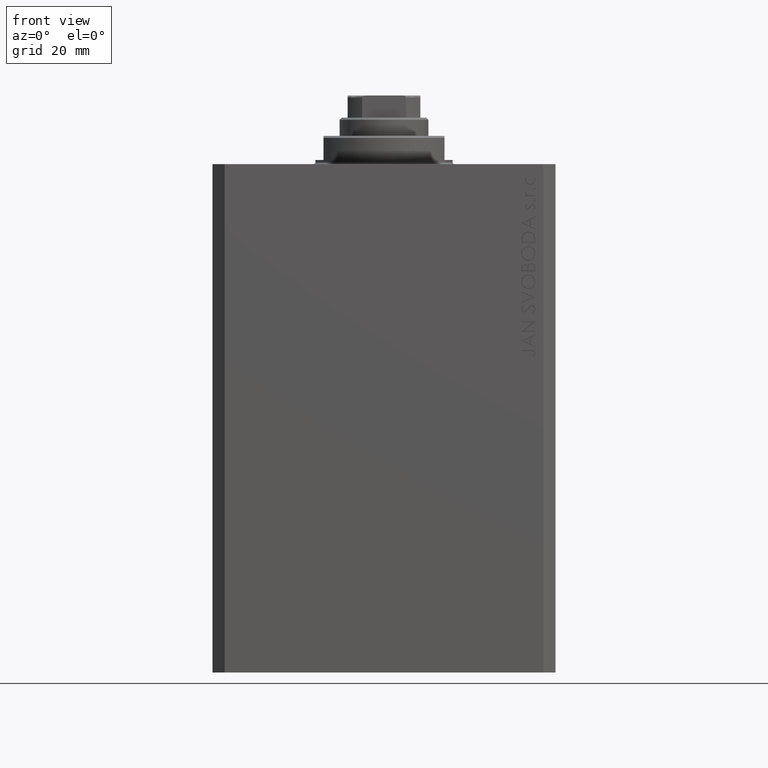
[diagram: clean part render]
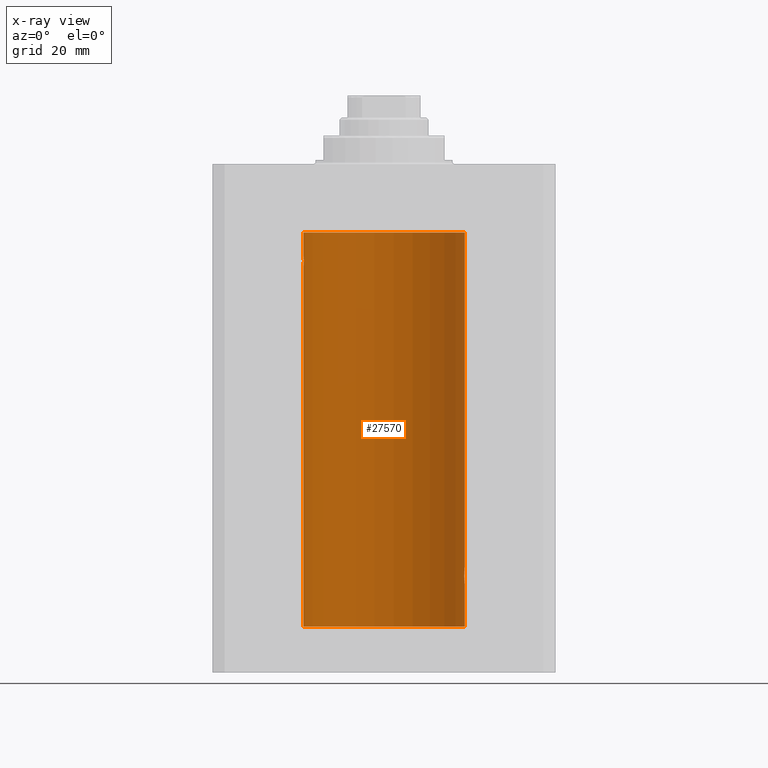
[diagram: x-ray — body ghosted, one internal face saturated and labeled with its STEP entity id]
A machine part, front view, then the same camera in x-ray: the body is ghosted and one INTERNAL B-rep face — a face not visible from any outside direction — is saturated and labeled: STEP entity #27570.
In plain terms, the highlighted cylindrical surface (partial cylindrical patch) has radius 20 mm, axis along (0, 0, 1).
Its self-contained STEP definition (entity closure, byte-faithful):
#507 = CARTESIAN_POINT ( 'NONE',  ( -19.96304379627741454, 1.220099331833899736, -25.59007067689674386 ) ) ;
#743 = CARTESIAN_POINT ( 'NONE',  ( -19.90610216711450420, 1.935912154109700190, -24.51899474186111050 ) ) ;
#912 = CARTESIAN_POINT ( 'NONE',  ( -20.00000000000000000, 2.449293598294706513E-15, -114.5999999999999943 ) ) ;
#990 = EDGE_CURVE ( 'NONE', #46525, #39022, #39038, .T. ) ;
#1505 = CARTESIAN_POINT ( 'NONE',  ( 19.98995738555794688, 0.6452086089795042723, -103.8976034536016044 ) ) ;
#1602 = AXIS2_PLACEMENT_3D ( 'NONE', #34796, #27419, #34562 ) ;
#1742 = CARTESIAN_POINT ( 'NONE',  ( 19.93682487288204541, 1.599118048130817149, -103.2291703518122148 ) ) ;
#2336 = EDGE_CURVE ( 'NONE', #39022, #36044, #27652, .T. ) ;
#2454 = CARTESIAN_POINT ( 'NONE',  ( -19.99999999999999645, 0.1322335637814733289, -21.99999999999999645 ) ) ;
#3391 = CARTESIAN_POINT ( 'NONE',  ( -19.93684595445884611, 1.598854313793185655, -22.77049887769366521 ) ) ;
#3393 = ORIENTED_EDGE ( 'NONE', *, *, #2336, .T. ) ;
#3869 = CARTESIAN_POINT ( 'NONE',  ( -19.94330239452387232, 1.507796451871729504, -25.32060165083834136 ) ) ;
#4093 = CARTESIAN_POINT ( 'NONE',  ( -19.98070694681040038, 0.8865903856744316025, -25.79753901127162763 ) ) ;
#4163 = CARTESIAN_POINT ( 'NONE',  ( 20.00000000000000000, 0.000000000000000000, -114.5999999999999943 ) ) ;
#4365 = ORIENTED_EDGE ( 'NONE', *, *, #30948, .T. ) ;
#4468 = CARTESIAN_POINT ( 'NONE',  ( 19.98998987637478209, 0.6441982143731844745, -100.1020565463988561 ) ) ;
#4645 = AXIS2_PLACEMENT_3D ( 'NONE', #6623, #38618, #21201 ) ;
#4704 = CARTESIAN_POINT ( 'NONE',  ( 20.00000000000000000, -1.553109350199128042E-23, -100.0000000000000000 ) ) ;
#5323 = DIRECTION ( 'NONE',  ( -0.000000000000000000, -0.000000000000000000, 1.000000000000000000 ) ) ;
#5339 = CARTESIAN_POINT ( 'NONE',  ( 19.96307037068151757, 1.219701915132744841, -103.5904134935036467 ) ) ;
#6623 = CARTESIAN_POINT ( 'NONE',  ( 0.000000000000000000, 0.000000000000000000, -17.00000000000000000 ) ) ;
#7718 = CARTESIAN_POINT ( 'NONE',  ( -19.99867931558985745, 0.2631998640366461362, -25.98691292011447374 ) ) ;
#7947 = CARTESIAN_POINT ( 'NONE',  ( -19.92471474456649716, 1.735228749583835439, -25.00297226784954674 ) ) ;
#7993 = CARTESIAN_POINT ( 'NONE',  ( 19.89974874213236333, 2.000000000000336620, -102.0000000000000142 ) ) ;
#8207 = VERTEX_POINT ( 'NONE', #37643 ) ;
#8593 = LINE ( 'NONE', #912, #46924 ) ;
#8946 = CARTESIAN_POINT ( 'NONE',  ( 19.97516523393783316, 1.002309963754524524, -103.7356447155610937 ) ) ;
#9187 = VECTOR ( 'NONE', #10023, 1000.000000000000000 ) ;
#10023 = DIRECTION ( 'NONE',  ( -0.000000000000000000, -0.000000000000000000, 1.000000000000000000 ) ) ;
#11188 = CARTESIAN_POINT ( 'NONE',  ( 19.90980722176544049, 1.897923463361389285, -101.3557453536680839 ) ) ;
#11293 = CARTESIAN_POINT ( 'NONE',  ( -19.90978941500366872, 1.898109641280506521, -24.64371130639850804 ) ) ;
#11407 = CARTESIAN_POINT ( 'NONE',  ( 19.98071536551674754, 0.8863972468204365240, -100.2023680539948458 ) ) ;
#11519 = CARTESIAN_POINT ( 'NONE',  ( -19.91909332229799290, 1.797847595792767317, -24.88596189455837759 ) ) ;
#11611 = DIRECTION ( 'NONE',  ( 0.000000000000000000, 0.000000000000000000, 1.000000000000000000 ) ) ;
#11880 = CARTESIAN_POINT ( 'NONE',  ( 19.99867993937906618, 0.2631387813862826053, -100.0130809500309539 ) ) ;
#12116 = CARTESIAN_POINT ( 'NONE',  ( 19.95655800881796083, 1.320814917468111194, -100.4923930935969594 ) ) ;
#12764 = CARTESIAN_POINT ( 'NONE',  ( 19.90520750556430229, 1.947496194184494378, -102.5245541699345324 ) ) ;
#12860 = FACE_OUTER_BOUND ( 'NONE', #16015, .T. ) ;
#12977 = CARTESIAN_POINT ( 'NONE',  ( 19.89974874213236333, 2.000000000000336620, -102.0000000000000142 ) ) ;
#14406 = CARTESIAN_POINT ( 'NONE',  ( -19.99365919015135518, 0.5196544277756711683, -25.93573148867292133 ) ) ;
#14640 = CARTESIAN_POINT ( 'NONE',  ( -19.93679350243183990, 1.590453176650918676, -25.21960275349743696 ) ) ;
#14739 = CARTESIAN_POINT ( 'NONE',  ( 0.000000000000000000, 0.000000000000000000, -114.5999999999999943 ) ) ;
#14854 = ORIENTED_EDGE ( 'NONE', *, *, #990, .T. ) ;
#14999 = CARTESIAN_POINT ( 'NONE',  ( 19.99366205580918887, 0.5195372307044503479, -100.0642390655580698 ) ) ;
#15108 = CARTESIAN_POINT ( 'NONE',  ( -19.99999999999999645, 0.1305706983324449733, -25.99999999999998934 ) ) ;
#15370 = ORIENTED_EDGE ( 'NONE', *, *, #20023, .F. ) ;
#15567 = EDGE_CURVE ( 'NONE', #20977, #39243, #24596, .T. ) ;
#16015 = EDGE_LOOP ( 'NONE', ( #15370, #37825, #40858, #14854, #3393, #4365, #36454, #38226, #40625 ) ) ;
#16343 = CARTESIAN_POINT ( 'NONE',  ( 19.92371056170336274, 1.748080295468898537, -103.0060386593725070 ) ) ;
#16640 = CARTESIAN_POINT ( 'NONE',  ( -20.00000000000000000, 2.449293598294706513E-15, -17.00000000000000000 ) ) ;
#17053 = CARTESIAN_POINT ( 'NONE',  ( -19.99868965376115071, 0.2622407139811102628, -22.01298505384673732 ) ) ;
#17438 = CARTESIAN_POINT ( 'NONE',  ( -20.00000000000000000, 2.449293582768784389E-15, -25.99999999999999645 ) ) ;
#18796 = DIRECTION ( 'NONE',  ( 1.000000000000000000, 0.000000000000000000, 0.000000000000000000 ) ) ;
#19922 = CARTESIAN_POINT ( 'NONE',  ( 19.95643710845398999, 1.322557776536547047, -103.5059384114668717 ) ) ;
#20021 = CYLINDRICAL_SURFACE ( 'NONE', #1602, 20.00000000000000000 ) ;
#20023 = EDGE_CURVE ( 'NONE', #8207, #39243, #36254, .T. ) ;
#20381 = LINE ( 'NONE', #38022, #32843 ) ;
#20977 = VERTEX_POINT ( 'NONE', #37194 ) ;
#21201 = DIRECTION ( 'NONE',  ( 1.000000000000000000, 0.000000000000000000, 0.000000000000000000 ) ) ;
#21435 = CIRCLE ( 'NONE', #4645, 20.00000000000000000 ) ;
#21715 = CARTESIAN_POINT ( 'NONE',  ( -20.00000000000000000, 2.449293598294706513E-15, -114.5999999999999943 ) ) ;
#22041 = CARTESIAN_POINT ( 'NONE',  ( -19.95654117037011588, 1.321069663197671273, -25.50738641543989615 ) ) ;
#22163 = CARTESIAN_POINT ( 'NONE',  ( 19.89974874213236689, 2.000000000000336620, -101.8694898374175750 ) ) ;
#22388 = CARTESIAN_POINT ( 'NONE',  ( 19.94332236886613074, 1.507531922383789524, -100.6790994990407455 ) ) ;
#22501 = CARTESIAN_POINT ( 'NONE',  ( -20.00000000000000000, 2.449293582768784389E-15, -25.99999999999999645 ) ) ;
#23098 = CARTESIAN_POINT ( 'NONE',  ( 19.96305842179988588, 1.219858681717333138, -100.4097471253956542 ) ) ;
#24409 = DIRECTION ( 'NONE',  ( -0.000000000000000000, -0.000000000000000000, 1.000000000000000000 ) ) ;
#24440 = CARTESIAN_POINT ( 'NONE',  ( -19.99370013622814568, 0.5179893069484621249, -22.06384771616670903 ) ) ;
#24596 = B_SPLINE_CURVE_WITH_KNOTS ( 'NONE', 3,
 ( #35168, #2454, #17053, #24440, #38977, #28722, #25145, #39686, #36105, #3391, #31374, #45897, #29656, #40158, #39918, #743, #11293, #11519, #7947, #14640, #3869, #22041, #507, #44419, #4093, #33006, #14406, #7718, #15108, #22501 ),
 .UNSPECIFIED., .F., .F.,
 ( 4, 2, 2, 2, 2, 2, 2, 2, 2, 2, 2, 2, 2, 2, 4 ),
 ( 1.233811249882840126E-19, 0.0003910512220831129202, 0.0007821024441662257319, 0.001173153666249338381, 0.001564204888332450813, 0.002346307332498675461, 0.003128409776664900326, 0.003519460998748018179, 0.003910512220831135165, 0.004301563442914253452, 0.004692614664997370871, 0.005083665887080488291, 0.005474717109163606578, 0.005865768331246723997, 0.006256819553329842284 ),
 .UNSPECIFIED. ) ;
#25145 = CARTESIAN_POINT ( 'NONE',  ( -19.97517568592526160, 1.002099838626314909, -22.26423634872104884 ) ) ;
#25738 = CARTESIAN_POINT ( 'NONE',  ( 19.91911433329477177, 1.797615436563606561, -101.1135710607578062 ) ) ;
#25960 = CARTESIAN_POINT ( 'NONE',  ( 19.97511131722831479, 1.003336743019912936, -100.2649856517438849 ) ) ;
#25970 = EDGE_CURVE ( 'NONE', #37736, #46525, #20381, .T. ) ;
#26578 = EDGE_CURVE ( 'NONE', #34932, #44253, #21435, .T. ) ;
#27078 = CARTESIAN_POINT ( 'NONE',  ( 19.98066923111604964, 0.8874387315505228857, -103.7971214522024468 ) ) ;
#27419 = DIRECTION ( 'NONE',  ( -0.000000000000000000, -0.000000000000000000, 1.000000000000000000 ) ) ;
#27570 = ADVANCED_FACE ( 'NONE', ( #12860 ), #20021, .F. ) ;
#27652 = B_SPLINE_CURVE_WITH_KNOTS ( 'NONE', 3,
 ( #28844, #22163, #29310, #43850, #11188, #25738, #33131, #37169, #22388, #12116, #23098, #25960, #11407, #4468, #14999, #11880, #40508, #4704 ),
 .UNSPECIFIED., .F., .F.,
 ( 4, 2, 2, 2, 2, 2, 2, 2, 4 ),
 ( 0.003129134698348759892, 0.003520095305221480463, 0.003911055912094201469, 0.004302016518966922040, 0.004692977125839642612, 0.005083937732712363183, 0.005474898339585083755, 0.005865858946457804327, 0.006256819553330524898 ),
 .UNSPECIFIED. ) ;
#28722 = CARTESIAN_POINT ( 'NONE',  ( -19.98067755938510714, 0.8872481584516758168, -22.20278656943303375 ) ) ;
#28844 = CARTESIAN_POINT ( 'NONE',  ( 19.89974874213236333, 2.000000000000336620, -102.0000000000000142 ) ) ;
#29310 = CARTESIAN_POINT ( 'NONE',  ( 19.90107458412648711, 1.986930174329755161, -101.7369201394179328 ) ) ;
#29656 = CARTESIAN_POINT ( 'NONE',  ( -19.89975827978156175, 1.999905101582726719, -23.73819846102561115 ) ) ;
#29821 = DIRECTION ( 'NONE',  ( -0.000000000000000000, -0.000000000000000000, 1.000000000000000000 ) ) ;
#30410 = CARTESIAN_POINT ( 'NONE',  ( 20.00000000000000000, 1.967327733996653312E-15, -104.0000000000000142 ) ) ;
#30948 = EDGE_CURVE ( 'NONE', #36044, #34932, #46091, .T. ) ;
#31374 = CARTESIAN_POINT ( 'NONE',  ( -19.92373272380676497, 1.747830109444745927, -22.99354240926169624 ) ) ;
#31792 = AXIS2_PLACEMENT_3D ( 'NONE', #14739, #11611, #18796 ) ;
#32298 = CARTESIAN_POINT ( 'NONE',  ( 20.00000000000000000, 1.967327733996653312E-15, -104.0000000000000142 ) ) ;
#32843 = VECTOR ( 'NONE', #5323, 1000.000000000000000 ) ;
#33006 = CARTESIAN_POINT ( 'NONE',  ( -19.98998539619404013, 0.6443418861413118259, -25.89789687358865322 ) ) ;
#33131 = CARTESIAN_POINT ( 'NONE',  ( 19.92473605353366040, 1.734984354167257159, -100.9966090588858947 ) ) ;
#34562 = DIRECTION ( 'NONE',  ( 1.000000000000000000, 0.000000000000000000, 0.000000000000000000 ) ) ;
#34796 = CARTESIAN_POINT ( 'NONE',  ( 0.000000000000000000, 0.000000000000000000, -114.5999999999999943 ) ) ;
#34932 = VERTEX_POINT ( 'NONE', #36433 ) ;
#35168 = CARTESIAN_POINT ( 'NONE',  ( -20.00000000000000000, -1.269718202421245235E-16, -22.00000000000000000 ) ) ;
#36044 = VERTEX_POINT ( 'NONE', #37516 ) ;
#36105 = CARTESIAN_POINT ( 'NONE',  ( -19.95645382900617903, 1.322305185229311064, -22.49384229619286657 ) ) ;
#36254 = LINE ( 'NONE', #21715, #9187 ) ;
#36433 = CARTESIAN_POINT ( 'NONE',  ( 20.00000000000000000, 0.000000000000000000, -17.00000000000000000 ) ) ;
#36454 = ORIENTED_EDGE ( 'NONE', *, *, #26578, .T. ) ;
#37169 = CARTESIAN_POINT ( 'NONE',  ( 19.93681418096177183, 1.590194273034202688, -100.7800630082155209 ) ) ;
#37194 = CARTESIAN_POINT ( 'NONE',  ( -20.00000000000000000, -1.269718202421245235E-16, -22.00000000000000000 ) ) ;
#37516 = CARTESIAN_POINT ( 'NONE',  ( 20.00000000000000000, -1.553109350199128042E-23, -100.0000000000000000 ) ) ;
#37643 = CARTESIAN_POINT ( 'NONE',  ( -20.00000000000000000, 2.449293598294706513E-15, -114.5999999999999943 ) ) ;
#37736 = VERTEX_POINT ( 'NONE', #4163 ) ;
#37825 = ORIENTED_EDGE ( 'NONE', *, *, #44092, .F. ) ;
#38022 = CARTESIAN_POINT ( 'NONE',  ( 20.00000000000000000, 0.000000000000000000, -114.5999999999999943 ) ) ;
#38042 = CARTESIAN_POINT ( 'NONE',  ( 20.00000000000000000, 0.1322642052205942886, -104.0000000000000568 ) ) ;
#38226 = ORIENTED_EDGE ( 'NONE', *, *, #46140, .F. ) ;
#38507 = VECTOR ( 'NONE', #24409, 1000.000000000000000 ) ;
#38618 = DIRECTION ( 'NONE',  ( 0.000000000000000000, 0.000000000000000000, 1.000000000000000000 ) ) ;
#38977 = CARTESIAN_POINT ( 'NONE',  ( -19.98996196681220638, 0.6450624715427617506, -22.10234886833925572 ) ) ;
#39022 = VERTEX_POINT ( 'NONE', #12977 ) ;
#39038 = B_SPLINE_CURVE_WITH_KNOTS ( 'NONE', 3,
 ( #30410, #38042, #44946, #41367, #1505, #27078, #8946, #5339, #19922, #1742, #16343, #12764, #40663, #7993 ),
 .UNSPECIFIED., .F., .F.,
 ( 4, 2, 2, 2, 2, 2, 4 ),
 ( 1.911692756536875168E-18, 0.0003911418372936038769, 0.0007822836745872059107, 0.001173425511880807782, 0.001564567349174409870, 0.002346851023761584772, 0.003129134698348759892 ),
 .UNSPECIFIED. ) ;
#39176 = CARTESIAN_POINT ( 'NONE',  ( 20.00000000000000000, 0.000000000000000000, -114.5999999999999943 ) ) ;
#39243 = VERTEX_POINT ( 'NONE', #17438 ) ;
#39686 = CARTESIAN_POINT ( 'NONE',  ( -19.96308513509966787, 1.219458756546270672, -22.40940266542446935 ) ) ;
#39918 = CARTESIAN_POINT ( 'NONE',  ( -19.90106552791689154, 1.987020435121076734, -24.26241417820002155 ) ) ;
#40158 = CARTESIAN_POINT ( 'NONE',  ( -19.89974399317116394, 2.000047251570890250, -24.12981181290706445 ) ) ;
#40508 = CARTESIAN_POINT ( 'NONE',  ( 20.00000000000000000, 0.1305404422160218736, -99.99999999999998579 ) ) ;
#40625 = ORIENTED_EDGE ( 'NONE', *, *, #15567, .T. ) ;
#40663 = CARTESIAN_POINT ( 'NONE',  ( 19.89974874213236689, 2.000000000000336620, -102.2611413215582985 ) ) ;
#40858 = ORIENTED_EDGE ( 'NONE', *, *, #25970, .T. ) ;
#41367 = CARTESIAN_POINT ( 'NONE',  ( 19.99369727434158506, 0.5181068333511539281, -103.9361228828299630 ) ) ;
#43850 = CARTESIAN_POINT ( 'NONE',  ( 19.90611763847108762, 1.935753518394741635, -101.4804224343484975 ) ) ;
#44092 = EDGE_CURVE ( 'NONE', #37736, #8207, #45512, .T. ) ;
#44253 = VERTEX_POINT ( 'NONE', #16640 ) ;
#44419 = CARTESIAN_POINT ( 'NONE',  ( -19.97510079925438475, 1.003547732426807171, -25.73489454601984150 ) ) ;
#44946 = CARTESIAN_POINT ( 'NONE',  ( 19.99868904672146641, 0.2623009746877876802, -103.9870089850981145 ) ) ;
#45512 = CIRCLE ( 'NONE', #31792, 20.00000000000000000 ) ;
#45897 = CARTESIAN_POINT ( 'NONE',  ( -19.90522393307484705, 1.947330458682957177, -23.47486091545001941 ) ) ;
#46091 = LINE ( 'NONE', #39176, #38507 ) ;
#46140 = EDGE_CURVE ( 'NONE', #20977, #44253, #8593, .T. ) ;
#46525 = VERTEX_POINT ( 'NONE', #32298 ) ;
#46924 = VECTOR ( 'NONE', #29821, 1000.000000000000000 ) ;